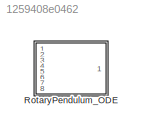
MODEL slx_1259408e0462
KIND model
CONFIG AbsTol = auto
CONFIG EnableMultiTasking = off
CONFIG FixedStep = auto
CONFIG MaxStep = auto
CONFIG MinStep = auto
CONFIG RelTol = 1e-3
CONFIG SampleTimeConstraint = Unconstrained
CONFIG Solver = VariableStepAuto
CONFIG SolverName = VariableStepAuto
CONFIG StartTime = 0.0
CONFIG StopTime = 10.0
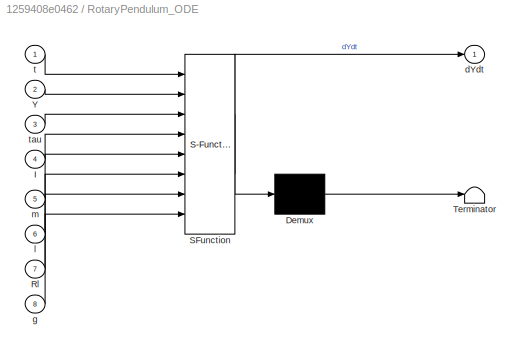
BLOCK [SubSystem] RotaryPendulum_ODE
  ErrorFcn = Stateflow.Translate.translate
  PermitHierarchicalResolution = ExplicitOnly
  Ports = [8, 1]
  RequestExecContextInheritance = off
  SFBlockType = MATLAB Function
  TreatAsAtomicUnit = on
  Variant = off
BLOCK [Demux] RotaryPendulum_ODE/ Demux 
  Outputs = 1
  Ports = [1, 1]
BLOCK [S-Function] RotaryPendulum_ODE/ SFunction 
  EnableBusSupport = off
  FunctionName = sf_sfun
  PortCounts = [8 2]
  Ports = [8, 2]
  SFcnIsStateOwnerBlock = off
  SFunctionDeploymentMode = off
  Tag = Stateflow S-Function RotaryPendulum_ODE_block 2
BLOCK [Terminator] RotaryPendulum_ODE/ Terminator 
BLOCK [Inport] RotaryPendulum_ODE/I
  IconDisplay = Port number
  Port = 4
BLOCK [Inport] RotaryPendulum_ODE/Rl
  IconDisplay = Port number
  Port = 7
BLOCK [Inport] RotaryPendulum_ODE/Y
  IconDisplay = Port number
  Port = 2
BLOCK [Outport] RotaryPendulum_ODE/dYdt
  IconDisplay = Port number
BLOCK [Inport] RotaryPendulum_ODE/g
  IconDisplay = Port number
  Port = 8
BLOCK [Inport] RotaryPendulum_ODE/l
  IconDisplay = Port number
  Port = 6
BLOCK [Inport] RotaryPendulum_ODE/m
  IconDisplay = Port number
  Port = 5
BLOCK [Inport] RotaryPendulum_ODE/t
  IconDisplay = Port number
BLOCK [Inport] RotaryPendulum_ODE/tau
  IconDisplay = Port number
  Port = 3
CHART RotaryPendulum_ODE states=1 transitions=1
  STATE_LABEL 'eML_blk_kernel()'
  STATE_LABEL 'SCRIPT:\nfunction dYdt = RotaryPendulum_ODE(t,Y,tau,I,m,l,Rl,g)\n%#codegen\n\n%    This function was generated by the Symbolic Math Toolbox version 7.1.\n%    19-Oct-2016 14:08:13\n\nt4 = Y(3);\nt2 = sin(t4);\nt3 = Rl.^2;\nt5 = cos(t4);\nt6 = Y(4);\nt7 = t5.^2;\nt8 = Y(2);\nt9 = l.^2;\nt10 = I.*1.2e1;\nt11 = m.*t3.*1.2e1;\nt12 = t2.^2;\nt13 = m.*t9.*t12.*4.0;\nt14 = t10+t11+t13-m.*t3.*t7.*9.0;\nt15 = 1.0./t14;\nt16 = ...<+389ch>'
